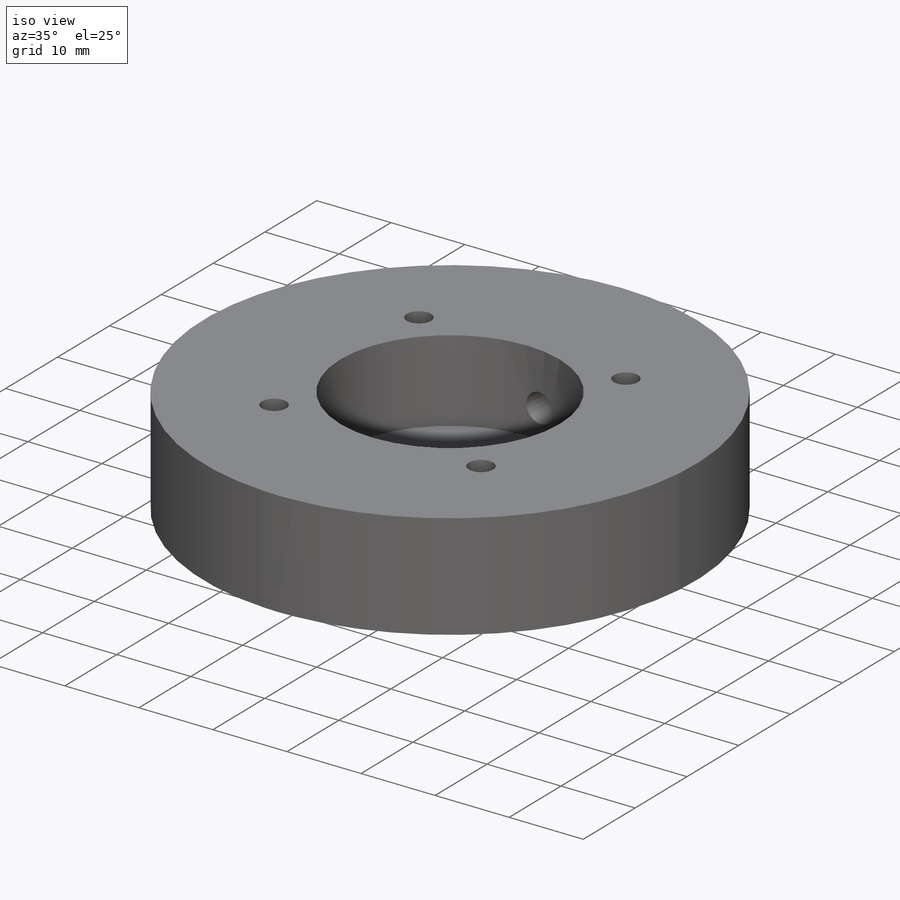
[diagram: iso view]
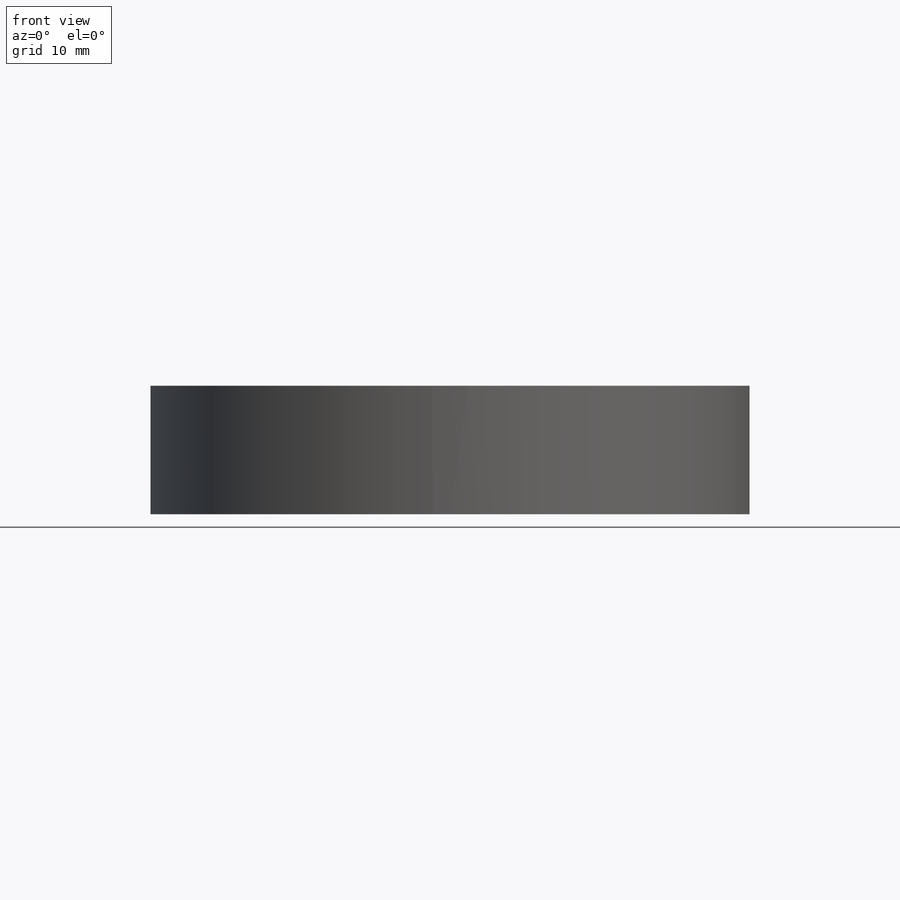
[diagram: front view]
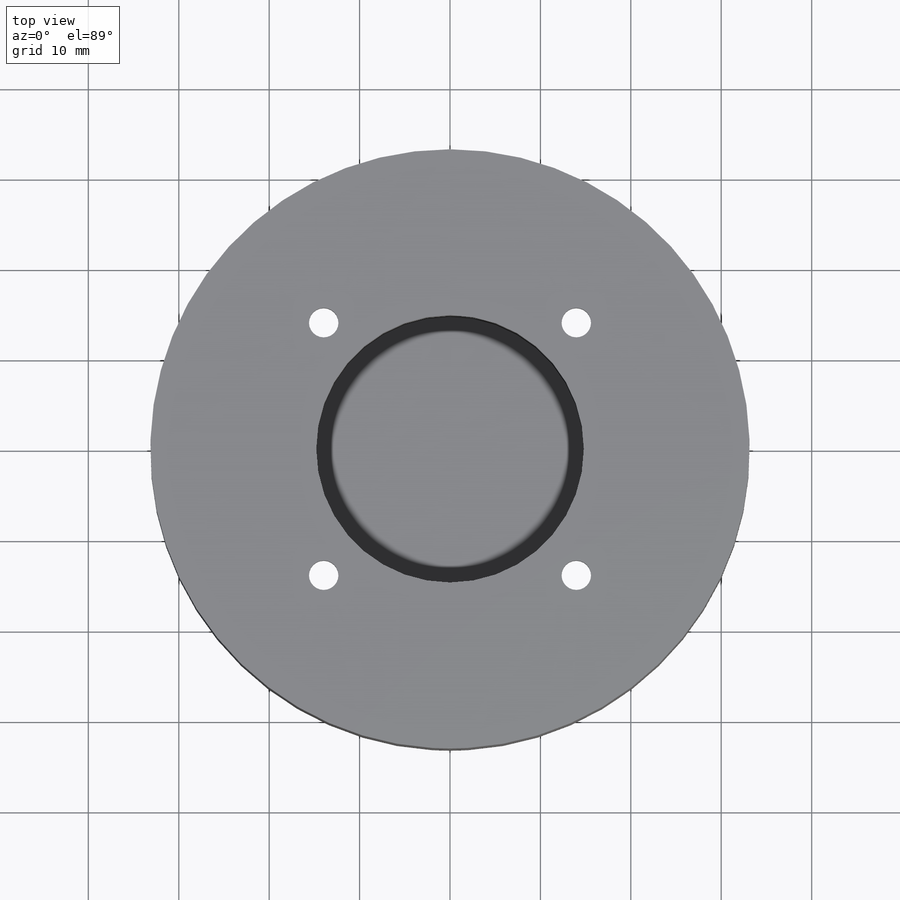
[diagram: top view]
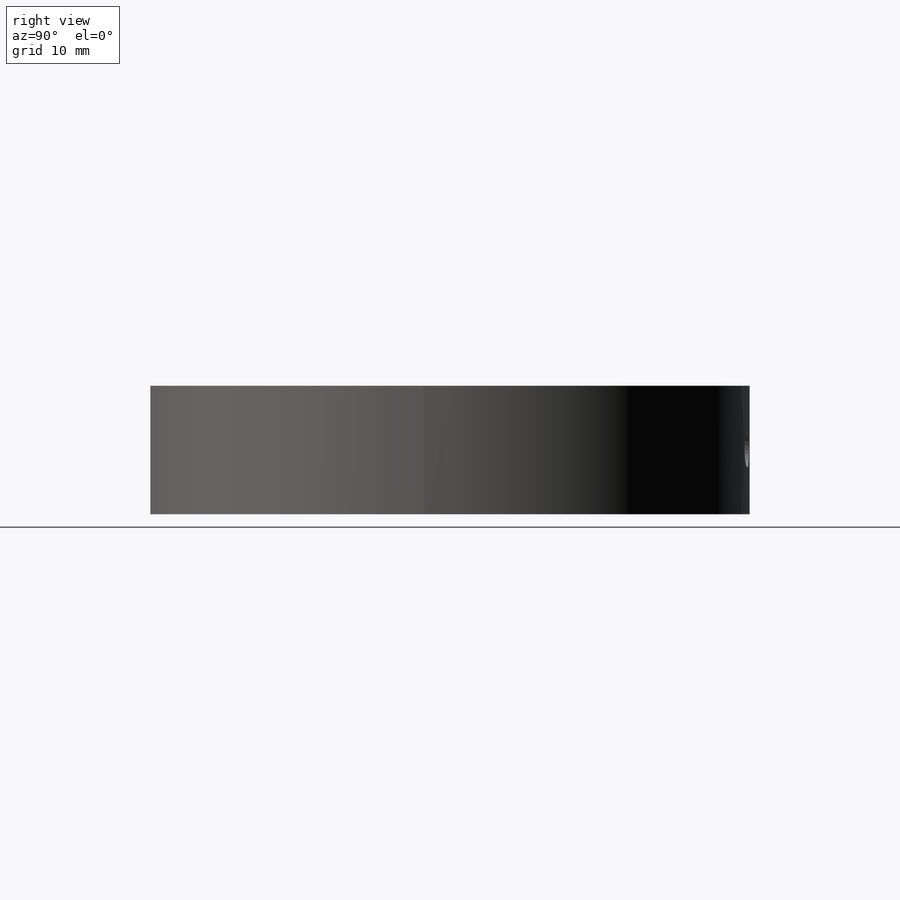
[diagram: right view]
SOLIDWORKS PART (.sldprt)
format: sldprt  version: not decoded by parser v0  size: 278,016 bytes
history: native  units: mm
features: sketch x7, hole x2, material x1, extrude x1, cut_extrude x1 (+11 scaffold rows collapsed)
feature tree (23):
  scaffold x11  (default folders/planes/origin — collapsed)
  material  "1060 Alloy"
  sketch  "Sketch2"  dims[D1=66.294mm]
  extrude  "Boss-Extrude1"  Depth=14.224mm
  sketch  "Sketch3"  dims[D1=50.6222mm]
  sketch  "Sketch4"  dims[D1=29.591mm]
  cut_extrude  "Cut-Extrude1"  Depth=3.175mm
  hole  "#24 (0.152) Diameter Hole1"  Diameter=3.8608mm Depth=25.4mm
  sketch  "3DSketch1"  dims[D1=7.112mm]
  sketch  "Sketch5"  dims[hole-wizard template sketch: 46 standard entries collapsed; hole parameters kept: c15.Hole Dia.=3.8608mm c15.Hole Depth=25.4mm c15.D3=~14.816244mm c15.Drill Angle=118.0deg]
  hole  "CBORE for #4 Binding Head Machine Screw1"  Diameter=3.2639mm Depth=14.224mm
  sketch  "Sketch7"
  sketch  "Sketch8"  dims[hole-wizard template sketch: 42 standard entries collapsed; hole parameters kept: c12.Thru Hole Depth=14.224mm c12.C'Bore Dia.=~6.74624mm c12.C'Bore Depth=11.049mm]
decode coverage: 10 of 11 modeling features carry decoded parameters
note: ~ marks probable driven/reference dimensions
note: suppression state not decoded; provenance and decode notes live in map.json
